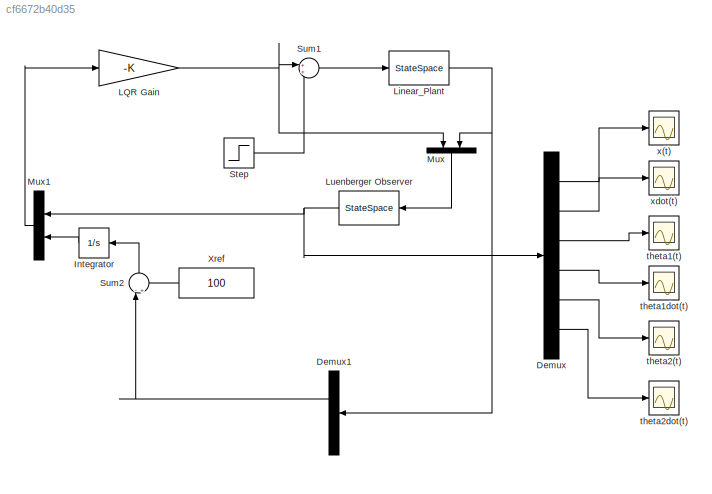
MODEL slx_cf6672b40d35
KIND model
CONFIG AbsTol = auto
CONFIG FixedStep = auto
CONFIG MaxStep = auto
CONFIG MinStep = auto
CONFIG RelTol = 1e-3
CONFIG SampleTimeConstraint = Unconstrained
CONFIG Solver = ode45
CONFIG SolverMode = Auto
CONFIG SolverName = ode45
CONFIG StartTime = 0.0
CONFIG StopTime = 1000.0
BLOCK [Demux] Demux
  DisplayOption = bar
  Outputs = 6
  Ports = [1, 6]
BLOCK [Demux] Demux1
  DisplayOption = bar
  Outputs = 2
  Ports = [1, 2]
BLOCK [Integrator] Integrator
  Ports = [1, 1]
BLOCK [Gain] LQR Gain
  Gain = -K
  Multiplication = Matrix(K*u) (u vector)
  OutDataTypeStr = Inherit: Inherit via internal rule
  ParamDataTypeStr = Inherit: Inherit via internal rule
  SaturateOnIntegerOverflow = off
BLOCK [StateSpace] Linear_Plant
  A = A
  B = B
  C = C
  D = D
  Ports = [1, 1]
  X0 = X0
BLOCK [StateSpace] Luenberger Observer
  A = AKL
  B = BL
  C = CO
  D = DO
  Ports = [1, 1]
  X0 = 0
BLOCK [Mux] Mux
  DisplayOption = bar
  Inputs = 2
  Ports = [2, 1]
BLOCK [Mux] Mux1
  DisplayOption = bar
  Inputs = 2
  Ports = [2, 1]
BLOCK [Step] Step
  SampleTime = 0
BLOCK [Sum] Sum1
  IconShape = round
  InputSameDT = off
  OutDataTypeStr = Inherit: Inherit via internal rule
  Ports = [2, 1]
  SaturateOnIntegerOverflow = off
BLOCK [Sum] Sum2
  IconShape = round
  InputSameDT = off
  Inputs = -+
  OutDataTypeStr = Inherit: Inherit via internal rule
  Ports = [2, 1]
  SaturateOnIntegerOverflow = off
BLOCK [Constant] Xref
  Value = 100
BLOCK [Scope] theta1(t)
  Floating = off
  NumInputPorts = 1
  Ports = [1]
  SaveName = ScopeData3
  TimeRange = 1000
  YMax = 0.07
  YMin = 0
BLOCK [Scope] theta1dot(t)
  Floating = off
  NumInputPorts = 1
  Ports = [1]
  SaveName = ScopeData5
  TimeRange = 1000
  YMax = 0.07
  YMin = 0
BLOCK [Scope] theta2(t)
  Floating = off
  NumInputPorts = 1
  Ports = [1]
  SaveName = ScopeData6
  TimeRange = 1000
  YMax = 0.07
  YMin = 0
BLOCK [Scope] theta2dot(t)
  Floating = off
  NumInputPorts = 1
  Ports = [1]
  SaveName = ScopeData7
  TimeRange = 1000
  YMax = 0.07
  YMin = 0
BLOCK [Scope] x(t)
  Floating = off
  NumInputPorts = 1
  Ports = [1]
  SaveName = ScopeData2
  TimeRange = 1000
  YMax = 1
  YMin = -1
BLOCK [Scope] xdot(t)
  Floating = off
  NumInputPorts = 1
  Ports = [1]
  SaveName = ScopeData4
  TimeRange = 1000
  YMax = 0.07
  YMin = 0
LINE Demux1:1 -> Sum2:1
LINE Demux:1 -> x(t):1
LINE Demux:2 -> xdot(t):1
LINE Demux:3 -> theta1(t):1
LINE Demux:4 -> theta1dot(t):1
LINE Demux:5 -> theta2(t):1
LINE Demux:6 -> theta2dot(t):1
LINE Integrator:1 -> Mux1:2
NET LQR Gain:1 -> Mux:1, Sum1:1
NET Linear_Plant:1 -> Demux1:1, Mux:2
NET Luenberger Observer:1 -> Demux:1, Mux1:1
LINE Mux1:1 -> LQR Gain:1
LINE Mux:1 -> Luenberger Observer:1
LINE Step:1 -> Sum1:2
LINE Sum1:1 -> Linear_Plant:1
LINE Sum2:1 -> Integrator:1
LINE Xref:1 -> Sum2:2
note: NET lines group one-source signal fan-out (src -> all destinations, sorted); 1:1 wires keep LINE
